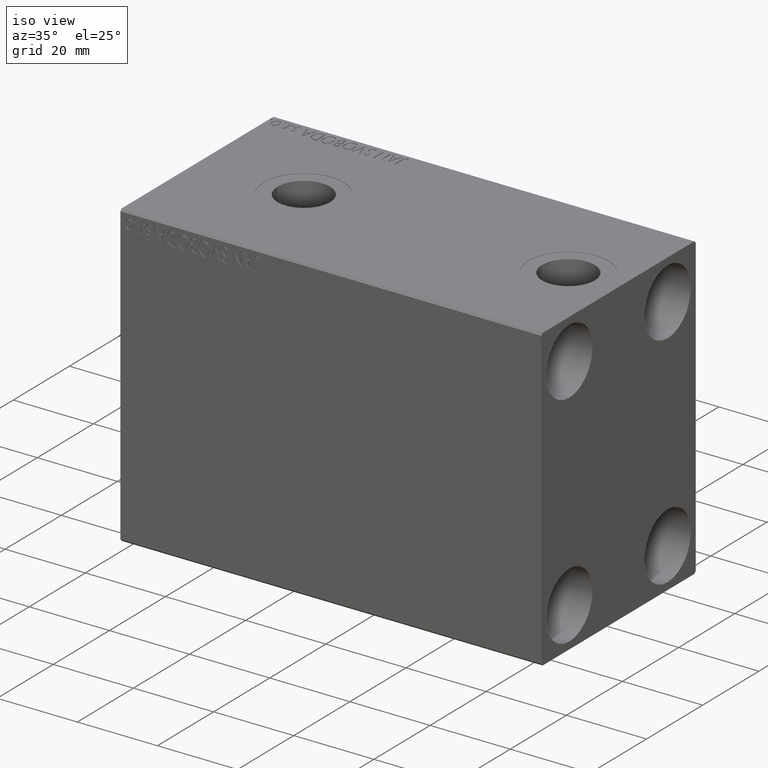
[diagram: clean part render]
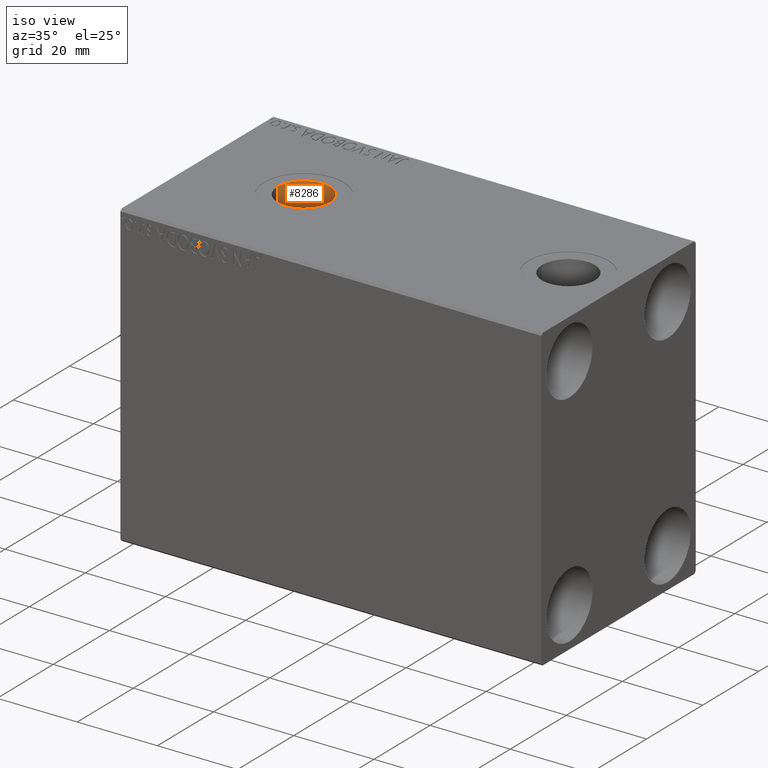
[diagram: same view with one face highlighted and labeled with its STEP entity id]
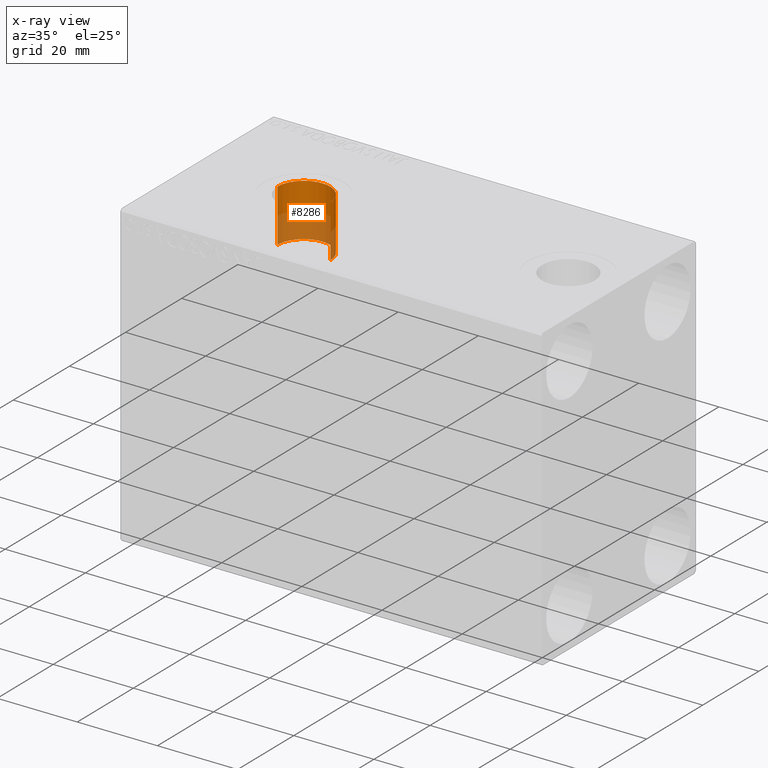
[diagram: x-ray of the same camera — body ghosted, the highlighted face saturated]
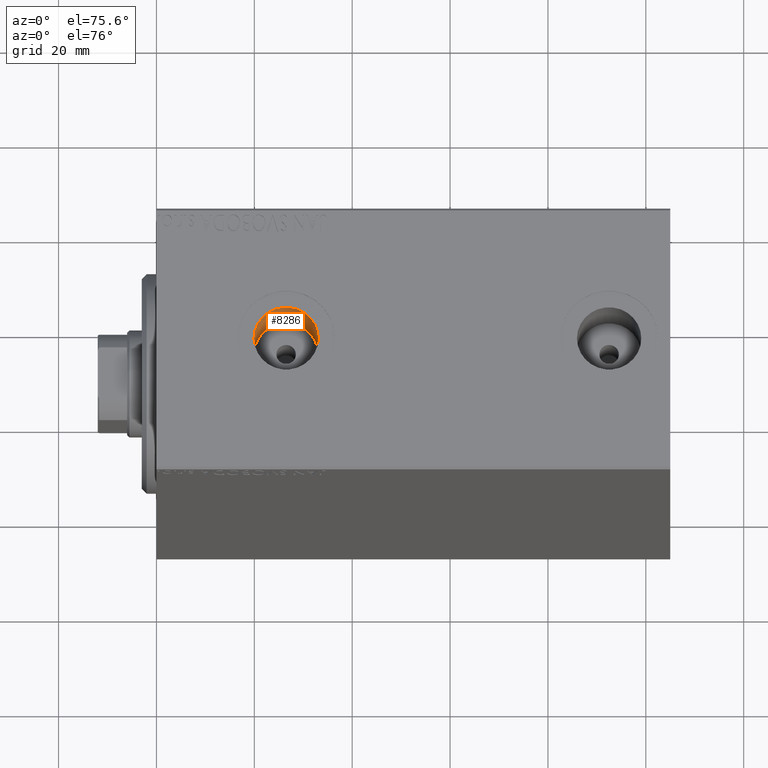
[diagram: same view with one face highlighted and labeled with its STEP entity id]
A machine part, iso view. The second image highlights one B-rep face of the part: STEP entity #8286.
The next image is the same camera in x-ray: the body ghosted, the highlighted face saturated — about 48% of this face is hidden behind the body in this view.
A second angle (auxiliary view) of the same face is appended — the face is thin or edge-on in the first view.
In plain terms, the highlighted cylindrical surface (edge-blend (fillet) strip) has radius 6.58 mm, axis along (0, 0, 1).
Its self-contained STEP definition (entity closure, byte-faithful):
#426 = EDGE_CURVE ( 'NONE', #5560, #21714, #5593, .T. ) ;
#678 = EDGE_CURVE ( 'NONE', #21714, #17754, #16141, .T. ) ;
#1086 = CARTESIAN_POINT ( 'NONE',  ( 33.07999999999999829, -4.731064025391293223E-15, 24.24000000000000554 ) ) ;
#1121 = CARTESIAN_POINT ( 'NONE',  ( 19.92000000000000171, -3.925246431552334970E-15, 24.24000000000000554 ) ) ;
#1418 = CIRCLE ( 'NONE', #19196, 6.579999999999999183 ) ;
#2456 = FACE_OUTER_BOUND ( 'NONE', #34931, .T. ) ;
#2681 = CARTESIAN_POINT ( 'NONE',  ( 26.50000000000000000, -4.731064025391293223E-15, 24.24000000000000554 ) ) ;
#5195 = LINE ( 'NONE', #33011, #18499 ) ;
#5471 = VECTOR ( 'NONE', #32537, 1000.000000000000000 ) ;
#5560 = VERTEX_POINT ( 'NONE', #1086 ) ;
#5593 = LINE ( 'NONE', #16065, #5471 ) ;
#6889 = CARTESIAN_POINT ( 'NONE',  ( 19.92000000000000171, -3.925246431552334970E-15, 37.40000000000000568 ) ) ;
#7297 = CYLINDRICAL_SURFACE ( 'NONE', #11380, 6.579999999999999183 ) ;
#7711 = EDGE_CURVE ( 'NONE', #23781, #17754, #5195, .T. ) ;
#8286 = ADVANCED_FACE ( 'NONE', ( #2456 ), #7297, .F. ) ;
#8317 = AXIS2_PLACEMENT_3D ( 'NONE', #40030, #39586, #32486 ) ;
#11380 = AXIS2_PLACEMENT_3D ( 'NONE', #2681, #20885, #29858 ) ;
#15107 = DIRECTION ( 'NONE',  ( 0.000000000000000000, 0.000000000000000000, 1.000000000000000000 ) ) ;
#16065 = CARTESIAN_POINT ( 'NONE',  ( 33.07999999999999829, -4.731064025391293223E-15, 24.24000000000000554 ) ) ;
#16141 = CIRCLE ( 'NONE', #8317, 6.579999999999999183 ) ;
#17754 = VERTEX_POINT ( 'NONE', #6889 ) ;
#18454 = CARTESIAN_POINT ( 'NONE',  ( 26.50000000000000000, -4.731064025391293223E-15, 24.24000000000000554 ) ) ;
#18499 = VECTOR ( 'NONE', #29469, 1000.000000000000000 ) ;
#19196 = AXIS2_PLACEMENT_3D ( 'NONE', #18454, #15107, #25572 ) ;
#20885 = DIRECTION ( 'NONE',  ( -0.000000000000000000, -0.000000000000000000, 1.000000000000000000 ) ) ;
#21714 = VERTEX_POINT ( 'NONE', #37106 ) ;
#23781 = VERTEX_POINT ( 'NONE', #1121 ) ;
#25572 = DIRECTION ( 'NONE',  ( 1.000000000000000000, 0.000000000000000000, 0.000000000000000000 ) ) ;
#28882 = ORIENTED_EDGE ( 'NONE', *, *, #678, .T. ) ;
#29469 = DIRECTION ( 'NONE',  ( -0.000000000000000000, -0.000000000000000000, 1.000000000000000000 ) ) ;
#29858 = DIRECTION ( 'NONE',  ( 1.000000000000000000, 0.000000000000000000, 0.000000000000000000 ) ) ;
#29894 = ORIENTED_EDGE ( 'NONE', *, *, #426, .T. ) ;
#31167 = ORIENTED_EDGE ( 'NONE', *, *, #7711, .F. ) ;
#32486 = DIRECTION ( 'NONE',  ( 1.000000000000000000, 0.000000000000000000, 0.000000000000000000 ) ) ;
#32537 = DIRECTION ( 'NONE',  ( -0.000000000000000000, -0.000000000000000000, 1.000000000000000000 ) ) ;
#33011 = CARTESIAN_POINT ( 'NONE',  ( 19.92000000000000171, -3.925246431552334970E-15, 24.24000000000000554 ) ) ;
#34931 = EDGE_LOOP ( 'NONE', ( #31167, #40538, #29894, #28882 ) ) ;
#37106 = CARTESIAN_POINT ( 'NONE',  ( 33.07999999999999829, -4.731064025391293223E-15, 37.40000000000000568 ) ) ;
#39586 = DIRECTION ( 'NONE',  ( 0.000000000000000000, 0.000000000000000000, 1.000000000000000000 ) ) ;
#40030 = CARTESIAN_POINT ( 'NONE',  ( 26.50000000000000000, -4.731064025391293223E-15, 37.40000000000000568 ) ) ;
#40538 = ORIENTED_EDGE ( 'NONE', *, *, #41317, .F. ) ;
#41317 = EDGE_CURVE ( 'NONE', #5560, #23781, #1418, .T. ) ;